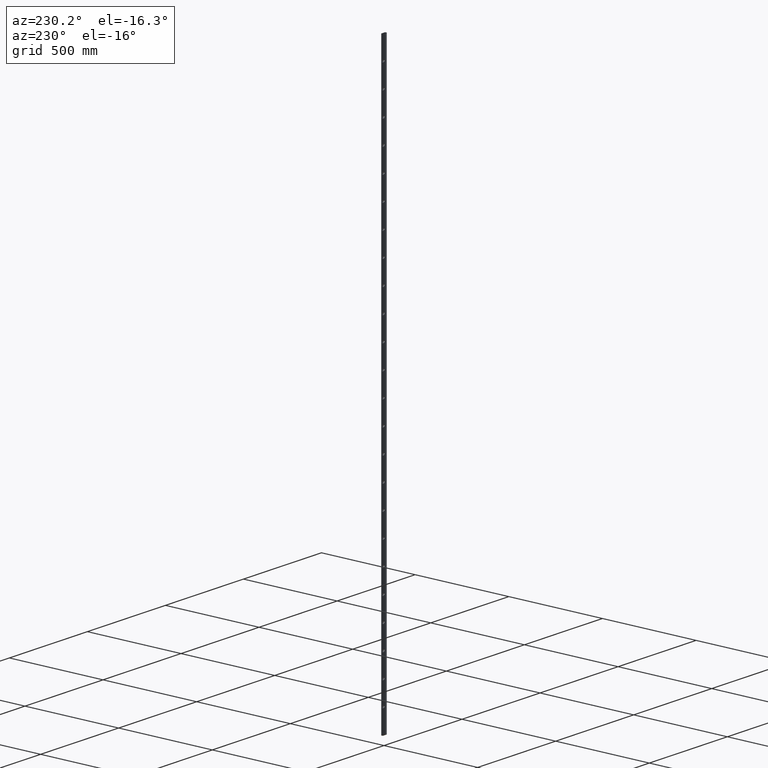
[diagram: clean part render]
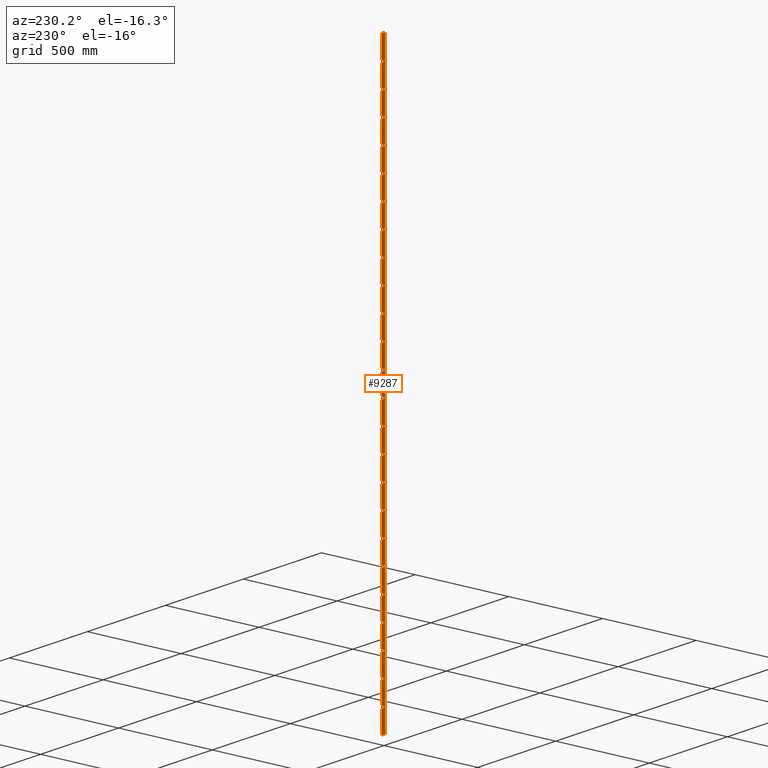
[diagram: same view with one face highlighted and labeled with its STEP entity id]
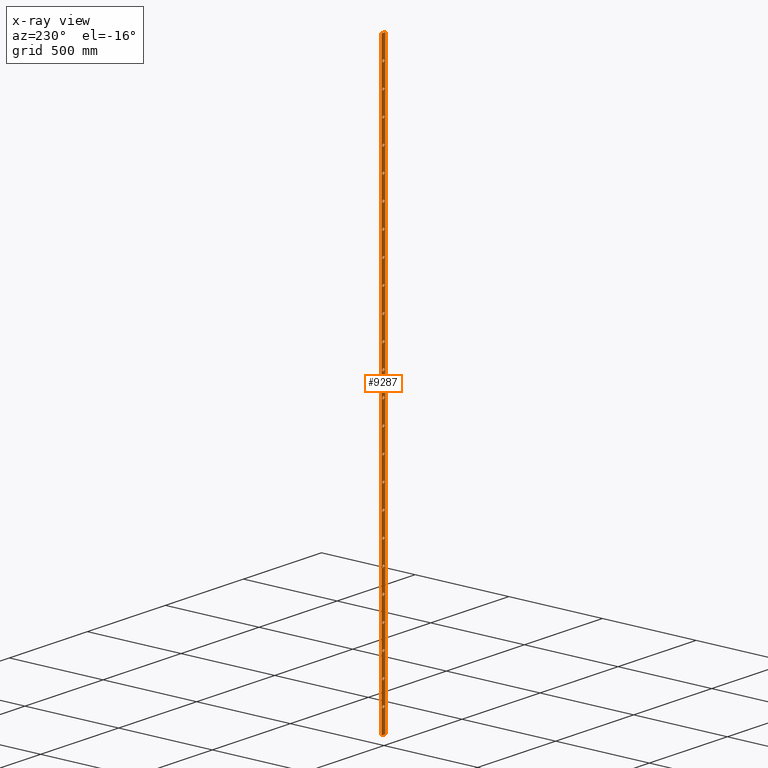
[diagram: x-ray of the same camera — body ghosted, the highlighted face saturated]
A machine part, auxiliary view. The second image highlights one B-rep face of the part: STEP entity #9287.
The next image is the same camera in x-ray: the body ghosted, the highlighted face saturated — about 0% of this face is hidden behind the body in this view.
In plain terms, the highlighted planar face has unit normal (-0, 1, 0).
Its self-contained STEP definition (entity closure, byte-faithful):
#37 = CARTESIAN_POINT ( 'NONE',  ( 0.000000000000000000, 4.000000000000000000, 779.9999999999998863 ) ) ;
#153 = EDGE_LOOP ( 'NONE', ( #8271 ) ) ;
#311 = DIRECTION ( 'NONE',  ( 1.000000000000000000, 0.000000000000000000, 0.000000000000000000 ) ) ;
#349 = VERTEX_POINT ( 'NONE', #6931 ) ;
#378 = EDGE_LOOP ( 'NONE', ( #3063 ) ) ;
#425 = ORIENTED_EDGE ( 'NONE', *, *, #12514, .T. ) ;
#453 = VERTEX_POINT ( 'NONE', #7184 ) ;
#480 = DIRECTION ( 'NONE',  ( 0.000000000000000000, 1.000000000000000000, 0.000000000000000000 ) ) ;
#496 = CARTESIAN_POINT ( 'NONE',  ( 0.000000000000000000, 4.000000000000000000, -1140.000000000000227 ) ) ;
#499 = DIRECTION ( 'NONE',  ( 0.000000000000000000, 0.000000000000000000, 1.000000000000000000 ) ) ;
#520 = DIRECTION ( 'NONE',  ( 0.000000000000000000, 1.000000000000000000, 0.000000000000000000 ) ) ;
#535 = DIRECTION ( 'NONE',  ( 0.000000000000000000, 0.000000000000000000, 1.000000000000000000 ) ) ;
#714 = CARTESIAN_POINT ( 'NONE',  ( 0.000000000000000000, 4.000000000000000000, 299.9999999999998295 ) ) ;
#717 = FACE_BOUND ( 'NONE', #3802, .T. ) ;
#749 = DIRECTION ( 'NONE',  ( 0.000000000000000000, 1.000000000000000000, 0.000000000000000000 ) ) ;
#896 = FACE_BOUND ( 'NONE', #1945, .T. ) ;
#1135 = PLANE ( 'NONE',  #1396 ) ;
#1157 = VERTEX_POINT ( 'NONE', #4008 ) ;
#1167 = VERTEX_POINT ( 'NONE', #14118 ) ;
#1201 = AXIS2_PLACEMENT_3D ( 'NONE', #14935, #3797, #8704 ) ;
#1202 = DIRECTION ( 'NONE',  ( 0.000000000000000000, 1.000000000000000000, 0.000000000000000000 ) ) ;
#1217 = EDGE_CURVE ( 'NONE', #8886, #8886, #5727, .T. ) ;
#1237 = FACE_BOUND ( 'NONE', #9127, .T. ) ;
#1277 = DIRECTION ( 'NONE',  ( 0.000000000000000000, 0.000000000000000000, 1.000000000000000000 ) ) ;
#1396 = AXIS2_PLACEMENT_3D ( 'NONE', #4739, #9133, #2370 ) ;
#1409 = CIRCLE ( 'NONE', #3772, 6.500000000000061284 ) ;
#1481 = AXIS2_PLACEMENT_3D ( 'NONE', #9988, #9839, #9939 ) ;
#1504 = EDGE_CURVE ( 'NONE', #3850, #3850, #4181, .T. ) ;
#1514 = CIRCLE ( 'NONE', #5341, 6.499999999999950262 ) ;
#1515 = VERTEX_POINT ( 'NONE', #9679 ) ;
#1554 = CARTESIAN_POINT ( 'NONE',  ( 0.000000000000000000, 4.000000000000000000, 786.5000000000000000 ) ) ;
#1610 = FACE_BOUND ( 'NONE', #14314, .T. ) ;
#1625 = ORIENTED_EDGE ( 'NONE', *, *, #14549, .T. ) ;
#1630 = DIRECTION ( 'NONE',  ( 0.000000000000000000, 1.000000000000000000, 0.000000000000000000 ) ) ;
#1650 = DIRECTION ( 'NONE',  ( 0.000000000000000000, 0.000000000000000000, 1.000000000000000000 ) ) ;
#1651 = CARTESIAN_POINT ( 'NONE',  ( 0.000000000000000000, 4.000000000000000000, -773.5000000000003411 ) ) ;
#1662 = LINE ( 'NONE', #2612, #13552 ) ;
#1690 = VERTEX_POINT ( 'NONE', #13237 ) ;
#1731 = DIRECTION ( 'NONE',  ( 0.000000000000000000, 0.000000000000000000, 1.000000000000000000 ) ) ;
#1757 = AXIS2_PLACEMENT_3D ( 'NONE', #12530, #9397, #12778 ) ;
#1774 = CARTESIAN_POINT ( 'NONE',  ( 12.49999999999986322, 4.000000000000000000, -1500.000000000000000 ) ) ;
#1781 = FACE_BOUND ( 'NONE', #4179, .T. ) ;
#1860 = CARTESIAN_POINT ( 'NONE',  ( 0.000000000000000000, 4.000000000000000000, -53.50000000000009948 ) ) ;
#1893 = VERTEX_POINT ( 'NONE', #5238 ) ;
#1945 = EDGE_LOOP ( 'NONE', ( #4846 ) ) ;
#1973 = EDGE_CURVE ( 'NONE', #6763, #6763, #13546, .T. ) ;
#2030 = CARTESIAN_POINT ( 'NONE',  ( 0.000000000000000000, 4.000000000000000000, -1259.999999999999773 ) ) ;
#2087 = CIRCLE ( 'NONE', #11714, 6.499999999999895195 ) ;
#2219 = ORIENTED_EDGE ( 'NONE', *, *, #9385, .F. ) ;
#2231 = DIRECTION ( 'NONE',  ( 0.000000000000000000, 1.000000000000000000, 0.000000000000000000 ) ) ;
#2234 = CARTESIAN_POINT ( 'NONE',  ( 0.000000000000000000, 4.000000000000000000, -780.0000000000002274 ) ) ;
#2370 = DIRECTION ( 'NONE',  ( 0.000000000000000000, -0.000000000000000000, 1.000000000000000000 ) ) ;
#2401 = VERTEX_POINT ( 'NONE', #10906 ) ;
#2423 = DIRECTION ( 'NONE',  ( 0.000000000000000000, 1.000000000000000000, 0.000000000000000000 ) ) ;
#2436 = CIRCLE ( 'NONE', #14800, 6.499999999999728217 ) ;
#2473 = CIRCLE ( 'NONE', #9875, 6.500000000000117240 ) ;
#2612 = CARTESIAN_POINT ( 'NONE',  ( -12.49999999999993072, 4.000000000000000000, 1500.000000000000000 ) ) ;
#2653 = ORIENTED_EDGE ( 'NONE', *, *, #5728, .F. ) ;
#2659 = AXIS2_PLACEMENT_3D ( 'NONE', #14185, #8477, #7246 ) ;
#2671 = FACE_BOUND ( 'NONE', #10239, .T. ) ;
#2722 = EDGE_LOOP ( 'NONE', ( #7436 ) ) ;
#2725 = DIRECTION ( 'NONE',  ( -1.000000000000000000, 0.000000000000000000, 0.000000000000000000 ) ) ;
#2758 = CARTESIAN_POINT ( 'NONE',  ( 0.000000000000000000, 4.000000000000000000, -1373.500000000000000 ) ) ;
#2805 = DIRECTION ( 'NONE',  ( 0.000000000000000000, 1.000000000000000000, 0.000000000000000000 ) ) ;
#2873 = EDGE_LOOP ( 'NONE', ( #11179 ) ) ;
#2924 = ORIENTED_EDGE ( 'NONE', *, *, #14196, .F. ) ;
#3063 = ORIENTED_EDGE ( 'NONE', *, *, #8175, .F. ) ;
#3171 = CIRCLE ( 'NONE', #6129, 6.499999999999950262 ) ;
#3523 = VERTEX_POINT ( 'NONE', #10267 ) ;
#3553 = FACE_BOUND ( 'NONE', #2873, .T. ) ;
#3772 = AXIS2_PLACEMENT_3D ( 'NONE', #14878, #2423, #10458 ) ;
#3797 = DIRECTION ( 'NONE',  ( 0.000000000000000000, 1.000000000000000000, 0.000000000000000000 ) ) ;
#3802 = EDGE_LOOP ( 'NONE', ( #2924 ) ) ;
#3850 = VERTEX_POINT ( 'NONE', #4913 ) ;
#3925 = FACE_BOUND ( 'NONE', #7308, .T. ) ;
#4008 = CARTESIAN_POINT ( 'NONE',  ( 0.000000000000000000, 4.000000000000000000, 1266.499999999999545 ) ) ;
#4030 = ORIENTED_EDGE ( 'NONE', *, *, #6102, .F. ) ;
#4049 = EDGE_LOOP ( 'NONE', ( #9229 ) ) ;
#4072 = CIRCLE ( 'NONE', #9311, 6.499999999999950262 ) ;
#4110 = ORIENTED_EDGE ( 'NONE', *, *, #7306, .F. ) ;
#4165 = DIRECTION ( 'NONE',  ( 0.000000000000000000, 0.000000000000000000, 1.000000000000000000 ) ) ;
#4179 = EDGE_LOOP ( 'NONE', ( #2653 ) ) ;
#4181 = CIRCLE ( 'NONE', #12176, 6.499999999999950262 ) ;
#4297 = CIRCLE ( 'NONE', #5373, 6.499999999999950262 ) ;
#4435 = DIRECTION ( 'NONE',  ( 0.000000000000000000, 0.000000000000000000, 1.000000000000000000 ) ) ;
#4471 = ORIENTED_EDGE ( 'NONE', *, *, #8539, .F. ) ;
#4472 = EDGE_CURVE ( 'NONE', #1167, #1167, #6933, .T. ) ;
#4479 = DIRECTION ( 'NONE',  ( 0.000000000000000000, 1.000000000000000000, 0.000000000000000000 ) ) ;
#4587 = CARTESIAN_POINT ( 'NONE',  ( 0.000000000000000000, 4.000000000000000000, -1020.000000000000000 ) ) ;
#4648 = DIRECTION ( 'NONE',  ( 0.000000000000000000, 0.000000000000000000, 1.000000000000000000 ) ) ;
#4650 = ORIENTED_EDGE ( 'NONE', *, *, #6361, .F. ) ;
#4705 = ORIENTED_EDGE ( 'NONE', *, *, #7872, .F. ) ;
#4707 = DIRECTION ( 'NONE',  ( 0.000000000000000000, 1.000000000000000000, 0.000000000000000000 ) ) ;
#4739 = CARTESIAN_POINT ( 'NONE',  ( 0.000000000000000000, 4.000000000000000000, 0.000000000000000000 ) ) ;
#4825 = FACE_BOUND ( 'NONE', #13900, .T. ) ;
#4846 = ORIENTED_EDGE ( 'NONE', *, *, #1504, .F. ) ;
#4864 = CARTESIAN_POINT ( 'NONE',  ( 0.000000000000000000, 4.000000000000000000, -173.5000000000001990 ) ) ;
#4870 = ORIENTED_EDGE ( 'NONE', *, *, #4472, .F. ) ;
#4881 = ORIENTED_EDGE ( 'NONE', *, *, #1217, .F. ) ;
#4883 = DIRECTION ( 'NONE',  ( 0.000000000000000000, 1.000000000000000000, 0.000000000000000000 ) ) ;
#4892 = EDGE_CURVE ( 'NONE', #7479, #7479, #11248, .T. ) ;
#4913 = CARTESIAN_POINT ( 'NONE',  ( 0.000000000000000000, 4.000000000000000000, 1026.500000000000000 ) ) ;
#4925 = ORIENTED_EDGE ( 'NONE', *, *, #4892, .F. ) ;
#4934 = VERTEX_POINT ( 'NONE', #5068 ) ;
#4955 = CARTESIAN_POINT ( 'NONE',  ( 0.000000000000000000, 4.000000000000000000, 179.9999999999999432 ) ) ;
#5068 = CARTESIAN_POINT ( 'NONE',  ( 0.000000000000000000, 4.000000000000000000, 546.5000000000000000 ) ) ;
#5100 = CARTESIAN_POINT ( 'NONE',  ( 0.000000000000000000, 4.000000000000000000, 539.9999999999998863 ) ) ;
#5115 = VERTEX_POINT ( 'NONE', #9781 ) ;
#5119 = EDGE_LOOP ( 'NONE', ( #13339 ) ) ;
#5238 = CARTESIAN_POINT ( 'NONE',  ( 0.000000000000000000, 4.000000000000000000, -1013.500000000000114 ) ) ;
#5322 = AXIS2_PLACEMENT_3D ( 'NONE', #12938, #4883, #6158 ) ;
#5341 = AXIS2_PLACEMENT_3D ( 'NONE', #496, #8519, #1650 ) ;
#5373 = AXIS2_PLACEMENT_3D ( 'NONE', #4587, #2231, #6885 ) ;
#5405 = FACE_BOUND ( 'NONE', #6444, .T. ) ;
#5493 = VERTEX_POINT ( 'NONE', #9725 ) ;
#5636 = CIRCLE ( 'NONE', #8692, 6.500000000000061284 ) ;
#5727 = CIRCLE ( 'NONE', #10386, 6.500000000000061284 ) ;
#5728 = EDGE_CURVE ( 'NONE', #453, #453, #1514, .T. ) ;
#5758 = EDGE_CURVE ( 'NONE', #8155, #8155, #12167, .T. ) ;
#5784 = DIRECTION ( 'NONE',  ( 0.000000000000000000, 1.000000000000000000, 0.000000000000000000 ) ) ;
#5921 = FACE_BOUND ( 'NONE', #378, .T. ) ;
#6019 = VERTEX_POINT ( 'NONE', #14383 ) ;
#6102 = EDGE_CURVE ( 'NONE', #13049, #13049, #9032, .T. ) ;
#6129 = AXIS2_PLACEMENT_3D ( 'NONE', #2030, #4479, #8993 ) ;
#6158 = DIRECTION ( 'NONE',  ( 0.000000000000000000, 0.000000000000000000, 1.000000000000000000 ) ) ;
#6227 = VECTOR ( 'NONE', #2725, 1000.000000000000000 ) ;
#6269 = CARTESIAN_POINT ( 'NONE',  ( 0.000000000000000000, 4.000000000000000000, 1259.999999999999773 ) ) ;
#6274 = DIRECTION ( 'NONE',  ( 0.000000000000000000, 0.000000000000000000, 1.000000000000000000 ) ) ;
#6298 = CARTESIAN_POINT ( 'NONE',  ( 0.000000000000000000, 4.000000000000000000, -893.5000000000000000 ) ) ;
#6352 = CARTESIAN_POINT ( 'NONE',  ( 0.000000000000000000, 4.000000000000000000, 1386.499999999999773 ) ) ;
#6361 = EDGE_CURVE ( 'NONE', #12860, #12860, #13915, .T. ) ;
#6433 = AXIS2_PLACEMENT_3D ( 'NONE', #7953, #10114, #13607 ) ;
#6444 = EDGE_LOOP ( 'NONE', ( #9993 ) ) ;
#6481 = FACE_BOUND ( 'NONE', #6728, .T. ) ;
#6656 = CIRCLE ( 'NONE', #2659, 6.499999999999950262 ) ;
#6728 = EDGE_LOOP ( 'NONE', ( #10442 ) ) ;
#6763 = VERTEX_POINT ( 'NONE', #9399 ) ;
#6874 = AXIS2_PLACEMENT_3D ( 'NONE', #714, #14539, #4165 ) ;
#6885 = DIRECTION ( 'NONE',  ( 0.000000000000000000, 0.000000000000000000, 1.000000000000000000 ) ) ;
#6931 = CARTESIAN_POINT ( 'NONE',  ( -12.49999999999986322, 4.000000000000000000, -1500.000000000000000 ) ) ;
#6933 = CIRCLE ( 'NONE', #8372, 6.499999999999950262 ) ;
#7004 = FACE_BOUND ( 'NONE', #14022, .T. ) ;
#7137 = EDGE_LOOP ( 'NONE', ( #4650 ) ) ;
#7145 = VECTOR ( 'NONE', #10271, 1000.000000000000000 ) ;
#7148 = DIRECTION ( 'NONE',  ( -2.255140518769849223E-17, -0.000000000000000000, 1.000000000000000000 ) ) ;
#7184 = CARTESIAN_POINT ( 'NONE',  ( 0.000000000000000000, 4.000000000000000000, -1133.500000000000227 ) ) ;
#7233 = CARTESIAN_POINT ( 'NONE',  ( 0.000000000000000000, 4.000000000000000000, -533.5000000000001137 ) ) ;
#7246 = DIRECTION ( 'NONE',  ( 0.000000000000000000, 0.000000000000000000, 1.000000000000000000 ) ) ;
#7306 = EDGE_CURVE ( 'NONE', #4934, #4934, #5636, .T. ) ;
#7308 = EDGE_LOOP ( 'NONE', ( #4881 ) ) ;
#7327 = VECTOR ( 'NONE', #311, 1000.000000000000000 ) ;
#7385 = AXIS2_PLACEMENT_3D ( 'NONE', #13266, #1630, #6274 ) ;
#7386 = CARTESIAN_POINT ( 'NONE',  ( 0.000000000000000000, 4.000000000000000000, 1140.000000000000000 ) ) ;
#7436 = ORIENTED_EDGE ( 'NONE', *, *, #11639, .F. ) ;
#7479 = VERTEX_POINT ( 'NONE', #4864 ) ;
#7497 = CARTESIAN_POINT ( 'NONE',  ( 0.000000000000000000, 4.000000000000000000, -413.4999999999997726 ) ) ;
#7709 = EDGE_CURVE ( 'NONE', #349, #3523, #1662, .T. ) ;
#7872 = EDGE_CURVE ( 'NONE', #9043, #9043, #8008, .T. ) ;
#7887 = ORIENTED_EDGE ( 'NONE', *, *, #9533, .F. ) ;
#7890 = FACE_BOUND ( 'NONE', #11440, .T. ) ;
#7912 = AXIS2_PLACEMENT_3D ( 'NONE', #11049, #749, #535 ) ;
#7914 = EDGE_CURVE ( 'NONE', #5493, #5493, #2087, .T. ) ;
#7953 = CARTESIAN_POINT ( 'NONE',  ( 0.000000000000000000, 4.000000000000000000, 899.9999999999998863 ) ) ;
#8008 = CIRCLE ( 'NONE', #1201, 6.499999999999950262 ) ;
#8116 = CARTESIAN_POINT ( 'NONE',  ( 0.000000000000000000, 4.000000000000000000, -899.9999999999998863 ) ) ;
#8155 = VERTEX_POINT ( 'NONE', #10803 ) ;
#8161 = CARTESIAN_POINT ( 'NONE',  ( 12.49999999999986322, 4.000000000000000000, -1500.000000000000000 ) ) ;
#8175 = EDGE_CURVE ( 'NONE', #1157, #1157, #2436, .T. ) ;
#8181 = LINE ( 'NONE', #9650, #7327 ) ;
#8227 = FACE_BOUND ( 'NONE', #9315, .T. ) ;
#8271 = ORIENTED_EDGE ( 'NONE', *, *, #5758, .F. ) ;
#8368 = EDGE_LOOP ( 'NONE', ( #4870 ) ) ;
#8372 = AXIS2_PLACEMENT_3D ( 'NONE', #7386, #480, #11003 ) ;
#8477 = DIRECTION ( 'NONE',  ( 0.000000000000000000, 1.000000000000000000, 0.000000000000000000 ) ) ;
#8519 = DIRECTION ( 'NONE',  ( 0.000000000000000000, 1.000000000000000000, 0.000000000000000000 ) ) ;
#8539 = EDGE_CURVE ( 'NONE', #10868, #10868, #11625, .T. ) ;
#8692 = AXIS2_PLACEMENT_3D ( 'NONE', #5100, #13044, #1731 ) ;
#8704 = DIRECTION ( 'NONE',  ( 0.000000000000000000, 0.000000000000000000, 1.000000000000000000 ) ) ;
#8860 = VERTEX_POINT ( 'NONE', #11353 ) ;
#8886 = VERTEX_POINT ( 'NONE', #1554 ) ;
#8952 = CARTESIAN_POINT ( 'NONE',  ( 0.000000000000000000, 4.000000000000000000, 419.9999999999999432 ) ) ;
#8956 = FACE_BOUND ( 'NONE', #4049, .T. ) ;
#8966 = VERTEX_POINT ( 'NONE', #8161 ) ;
#8993 = DIRECTION ( 'NONE',  ( 0.000000000000000000, 0.000000000000000000, 1.000000000000000000 ) ) ;
#9032 = CIRCLE ( 'NONE', #1481, 6.499999999999950262 ) ;
#9043 = VERTEX_POINT ( 'NONE', #6352 ) ;
#9127 = EDGE_LOOP ( 'NONE', ( #4925 ) ) ;
#9133 = DIRECTION ( 'NONE',  ( -0.000000000000000000, 1.000000000000000000, 0.000000000000000000 ) ) ;
#9229 = ORIENTED_EDGE ( 'NONE', *, *, #9277, .F. ) ;
#9277 = EDGE_CURVE ( 'NONE', #1893, #1893, #4297, .T. ) ;
#9287 = ADVANCED_FACE ( 'NONE', ( #5405, #8956, #12060, #1610, #1237, #10049, #14751, #7004, #3925, #896, #5921, #12769, #9683, #3553, #14007, #717, #2671, #13318, #8227, #12248, #7890, #6481, #4825, #1781, #10383 ), #1135, .T. ) ;
#9311 = AXIS2_PLACEMENT_3D ( 'NONE', #2234, #13804, #1277 ) ;
#9315 = EDGE_LOOP ( 'NONE', ( #12719 ) ) ;
#9385 = EDGE_CURVE ( 'NONE', #5115, #5115, #1409, .T. ) ;
#9397 = DIRECTION ( 'NONE',  ( 0.000000000000000000, 1.000000000000000000, 0.000000000000000000 ) ) ;
#9399 = CARTESIAN_POINT ( 'NONE',  ( 0.000000000000000000, 4.000000000000000000, -293.4999999999998863 ) ) ;
#9533 = EDGE_CURVE ( 'NONE', #13754, #13754, #10220, .T. ) ;
#9599 = LINE ( 'NONE', #1774, #6227 ) ;
#9650 = CARTESIAN_POINT ( 'NONE',  ( -12.49999999999993072, 4.000000000000000000, 1500.000000000000000 ) ) ;
#9679 = CARTESIAN_POINT ( 'NONE',  ( 0.000000000000000000, 4.000000000000000000, 906.5000000000000000 ) ) ;
#9683 = FACE_OUTER_BOUND ( 'NONE', #14037, .T. ) ;
#9725 = CARTESIAN_POINT ( 'NONE',  ( 0.000000000000000000, 4.000000000000000000, 426.4999999999998295 ) ) ;
#9781 = CARTESIAN_POINT ( 'NONE',  ( 0.000000000000000000, 4.000000000000000000, 666.5000000000000000 ) ) ;
#9839 = DIRECTION ( 'NONE',  ( 0.000000000000000000, 1.000000000000000000, 0.000000000000000000 ) ) ;
#9875 = AXIS2_PLACEMENT_3D ( 'NONE', #4955, #2805, #13007 ) ;
#9910 = EDGE_LOOP ( 'NONE', ( #4705 ) ) ;
#9939 = DIRECTION ( 'NONE',  ( 0.000000000000000000, 0.000000000000000000, 1.000000000000000000 ) ) ;
#9988 = CARTESIAN_POINT ( 'NONE',  ( 0.000000000000000000, 4.000000000000000000, -540.0000000000000000 ) ) ;
#9993 = ORIENTED_EDGE ( 'NONE', *, *, #14240, .F. ) ;
#10049 = FACE_BOUND ( 'NONE', #2722, .T. ) ;
#10062 = EDGE_CURVE ( 'NONE', #6019, #6019, #6656, .T. ) ;
#10114 = DIRECTION ( 'NONE',  ( 0.000000000000000000, 1.000000000000000000, 0.000000000000000000 ) ) ;
#10220 = CIRCLE ( 'NONE', #7385, 6.499999999999950262 ) ;
#10239 = EDGE_LOOP ( 'NONE', ( #2219 ) ) ;
#10267 = CARTESIAN_POINT ( 'NONE',  ( -12.49999999999993072, 4.000000000000000000, 1500.000000000000000 ) ) ;
#10271 = DIRECTION ( 'NONE',  ( -2.255140518769849223E-17, 0.000000000000000000, -1.000000000000000000 ) ) ;
#10275 = CARTESIAN_POINT ( 'NONE',  ( 0.000000000000000000, 4.000000000000000000, -1380.000000000000000 ) ) ;
#10383 = FACE_BOUND ( 'NONE', #7137, .T. ) ;
#10386 = AXIS2_PLACEMENT_3D ( 'NONE', #37, #5784, #11516 ) ;
#10423 = EDGE_CURVE ( 'NONE', #2401, #2401, #2473, .T. ) ;
#10435 = AXIS2_PLACEMENT_3D ( 'NONE', #14021, #1202, #12823 ) ;
#10442 = ORIENTED_EDGE ( 'NONE', *, *, #10062, .F. ) ;
#10458 = DIRECTION ( 'NONE',  ( 0.000000000000000000, 0.000000000000000000, 1.000000000000000000 ) ) ;
#10483 = VERTEX_POINT ( 'NONE', #1651 ) ;
#10520 = AXIS2_PLACEMENT_3D ( 'NONE', #10275, #11547, #4648 ) ;
#10767 = ORIENTED_EDGE ( 'NONE', *, *, #1973, .F. ) ;
#10803 = CARTESIAN_POINT ( 'NONE',  ( 0.000000000000000000, 4.000000000000000000, 306.4999999999996021 ) ) ;
#10806 = CARTESIAN_POINT ( 'NONE',  ( 0.000000000000000000, 4.000000000000000000, 1020.000000000000000 ) ) ;
#10868 = VERTEX_POINT ( 'NONE', #6298 ) ;
#10906 = CARTESIAN_POINT ( 'NONE',  ( 0.000000000000000000, 4.000000000000000000, 186.5000000000000568 ) ) ;
#11003 = DIRECTION ( 'NONE',  ( 0.000000000000000000, 0.000000000000000000, 1.000000000000000000 ) ) ;
#11049 = CARTESIAN_POINT ( 'NONE',  ( 0.000000000000000000, 4.000000000000000000, -180.0000000000001705 ) ) ;
#11179 = ORIENTED_EDGE ( 'NONE', *, *, #14847, .F. ) ;
#11233 = AXIS2_PLACEMENT_3D ( 'NONE', #8116, #4707, #12826 ) ;
#11245 = DIRECTION ( 'NONE',  ( 0.000000000000000000, 1.000000000000000000, 0.000000000000000000 ) ) ;
#11248 = CIRCLE ( 'NONE', #7912, 6.499999999999950262 ) ;
#11250 = EDGE_CURVE ( 'NONE', #3523, #8860, #8181, .T. ) ;
#11353 = CARTESIAN_POINT ( 'NONE',  ( 12.49999999999993072, 4.000000000000000000, 1500.000000000000000 ) ) ;
#11427 = CIRCLE ( 'NONE', #6433, 6.500000000000061284 ) ;
#11440 = EDGE_LOOP ( 'NONE', ( #10767 ) ) ;
#11447 = CARTESIAN_POINT ( 'NONE',  ( 12.49999999999993072, 4.000000000000000000, 1500.000000000000000 ) ) ;
#11460 = CIRCLE ( 'NONE', #5322, 6.499999999999908518 ) ;
#11516 = DIRECTION ( 'NONE',  ( 0.000000000000000000, 0.000000000000000000, 1.000000000000000000 ) ) ;
#11547 = DIRECTION ( 'NONE',  ( 0.000000000000000000, 1.000000000000000000, 0.000000000000000000 ) ) ;
#11625 = CIRCLE ( 'NONE', #11233, 6.499999999999950262 ) ;
#11639 = EDGE_CURVE ( 'NONE', #14852, #14852, #11460, .T. ) ;
#11714 = AXIS2_PLACEMENT_3D ( 'NONE', #8952, #11245, #4435 ) ;
#11789 = VERTEX_POINT ( 'NONE', #7497 ) ;
#12035 = CARTESIAN_POINT ( 'NONE',  ( 0.000000000000000000, 4.000000000000000000, 66.49999999999995737 ) ) ;
#12036 = DIRECTION ( 'NONE',  ( 0.000000000000000000, 1.000000000000000000, 0.000000000000000000 ) ) ;
#12060 = FACE_BOUND ( 'NONE', #5119, .T. ) ;
#12167 = CIRCLE ( 'NONE', #6874, 6.499999999999783284 ) ;
#12176 = AXIS2_PLACEMENT_3D ( 'NONE', #10806, #12036, #499 ) ;
#12248 = FACE_BOUND ( 'NONE', #14456, .T. ) ;
#12514 = EDGE_CURVE ( 'NONE', #8860, #8966, #12902, .T. ) ;
#12530 = CARTESIAN_POINT ( 'NONE',  ( 0.000000000000000000, 4.000000000000000000, -300.0000000000000568 ) ) ;
#12564 = EDGE_CURVE ( 'NONE', #10483, #10483, #4072, .T. ) ;
#12719 = ORIENTED_EDGE ( 'NONE', *, *, #10423, .F. ) ;
#12769 = FACE_BOUND ( 'NONE', #9910, .T. ) ;
#12778 = DIRECTION ( 'NONE',  ( 0.000000000000000000, 0.000000000000000000, 1.000000000000000000 ) ) ;
#12823 = DIRECTION ( 'NONE',  ( 0.000000000000000000, 0.000000000000000000, 1.000000000000000000 ) ) ;
#12826 = DIRECTION ( 'NONE',  ( 0.000000000000000000, 0.000000000000000000, 1.000000000000000000 ) ) ;
#12860 = VERTEX_POINT ( 'NONE', #2758 ) ;
#12902 = LINE ( 'NONE', #11447, #7145 ) ;
#12938 = CARTESIAN_POINT ( 'NONE',  ( 0.000000000000000000, 4.000000000000000000, 60.00000000000005684 ) ) ;
#12955 = EDGE_LOOP ( 'NONE', ( #13838 ) ) ;
#13007 = DIRECTION ( 'NONE',  ( 0.000000000000000000, 0.000000000000000000, 1.000000000000000000 ) ) ;
#13044 = DIRECTION ( 'NONE',  ( 0.000000000000000000, 1.000000000000000000, 0.000000000000000000 ) ) ;
#13049 = VERTEX_POINT ( 'NONE', #7233 ) ;
#13237 = CARTESIAN_POINT ( 'NONE',  ( 0.000000000000000000, 4.000000000000000000, -1253.499999999999773 ) ) ;
#13253 = ORIENTED_EDGE ( 'NONE', *, *, #11250, .T. ) ;
#13266 = CARTESIAN_POINT ( 'NONE',  ( 0.000000000000000000, 4.000000000000000000, -60.00000000000005684 ) ) ;
#13318 = FACE_BOUND ( 'NONE', #12955, .T. ) ;
#13339 = ORIENTED_EDGE ( 'NONE', *, *, #12564, .F. ) ;
#13434 = CIRCLE ( 'NONE', #10435, 6.500000000000172307 ) ;
#13507 = DIRECTION ( 'NONE',  ( 0.000000000000000000, 0.000000000000000000, 1.000000000000000000 ) ) ;
#13546 = CIRCLE ( 'NONE', #1757, 6.500000000000172307 ) ;
#13552 = VECTOR ( 'NONE', #7148, 1000.000000000000000 ) ;
#13607 = DIRECTION ( 'NONE',  ( 0.000000000000000000, 0.000000000000000000, 1.000000000000000000 ) ) ;
#13754 = VERTEX_POINT ( 'NONE', #1860 ) ;
#13804 = DIRECTION ( 'NONE',  ( 0.000000000000000000, 1.000000000000000000, 0.000000000000000000 ) ) ;
#13838 = ORIENTED_EDGE ( 'NONE', *, *, #7914, .F. ) ;
#13900 = EDGE_LOOP ( 'NONE', ( #4471 ) ) ;
#13915 = CIRCLE ( 'NONE', #10520, 6.499999999999950262 ) ;
#14007 = FACE_BOUND ( 'NONE', #8368, .T. ) ;
#14021 = CARTESIAN_POINT ( 'NONE',  ( 0.000000000000000000, 4.000000000000000000, -419.9999999999999432 ) ) ;
#14022 = EDGE_LOOP ( 'NONE', ( #4110 ) ) ;
#14037 = EDGE_LOOP ( 'NONE', ( #13253, #425, #1625, #14477 ) ) ;
#14118 = CARTESIAN_POINT ( 'NONE',  ( 0.000000000000000000, 4.000000000000000000, 1146.499999999999773 ) ) ;
#14185 = CARTESIAN_POINT ( 'NONE',  ( 0.000000000000000000, 4.000000000000000000, -660.0000000000001137 ) ) ;
#14196 = EDGE_CURVE ( 'NONE', #1515, #1515, #11427, .T. ) ;
#14240 = EDGE_CURVE ( 'NONE', #1690, #1690, #3171, .T. ) ;
#14314 = EDGE_LOOP ( 'NONE', ( #4030 ) ) ;
#14383 = CARTESIAN_POINT ( 'NONE',  ( 0.000000000000000000, 4.000000000000000000, -653.5000000000002274 ) ) ;
#14456 = EDGE_LOOP ( 'NONE', ( #7887 ) ) ;
#14477 = ORIENTED_EDGE ( 'NONE', *, *, #7709, .T. ) ;
#14539 = DIRECTION ( 'NONE',  ( 0.000000000000000000, 1.000000000000000000, 0.000000000000000000 ) ) ;
#14549 = EDGE_CURVE ( 'NONE', #8966, #349, #9599, .T. ) ;
#14751 = FACE_BOUND ( 'NONE', #153, .T. ) ;
#14800 = AXIS2_PLACEMENT_3D ( 'NONE', #6269, #520, #13507 ) ;
#14847 = EDGE_CURVE ( 'NONE', #11789, #11789, #13434, .T. ) ;
#14852 = VERTEX_POINT ( 'NONE', #12035 ) ;
#14878 = CARTESIAN_POINT ( 'NONE',  ( 0.000000000000000000, 4.000000000000000000, 659.9999999999998863 ) ) ;
#14935 = CARTESIAN_POINT ( 'NONE',  ( 0.000000000000000000, 4.000000000000000000, 1380.000000000000000 ) ) ;